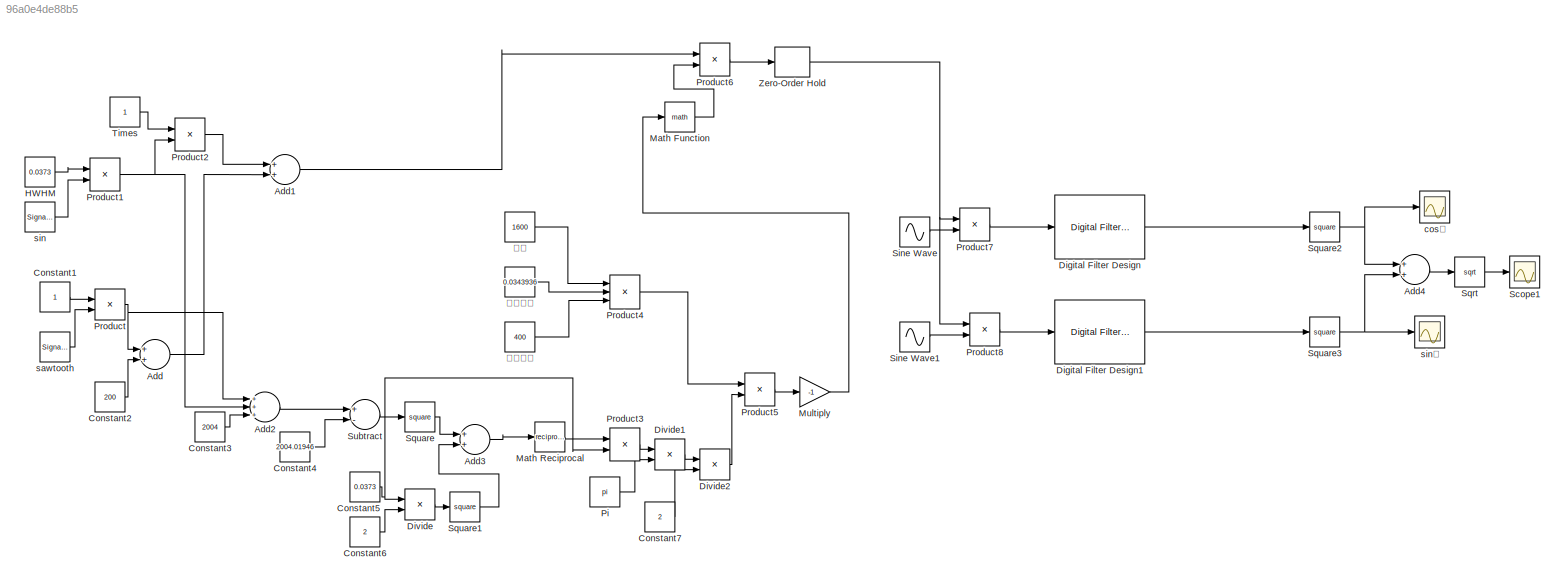
MODEL slx_96a0e4de88b5
KIND model
CONFIG AbsTol = auto
CONFIG EnableMultiTasking = off
CONFIG FixedStep = auto
CONFIG MaxStep = auto
CONFIG MinStep = auto
CONFIG RelTol = 1e-3
CONFIG SampleTimeConstraint = Unconstrained
CONFIG Solver = VariableStepAuto
CONFIG SolverName = VariableStepAuto
CONFIG StartTime = 0.0
CONFIG StopTime = 10.0
BLOCK [Sum] Add
  InputSameDT = off
  OutDataTypeStr = Inherit: Inherit via internal rule
  Ports = [2, 1]
  SaturateOnIntegerOverflow = off
BLOCK [Sum] Add1
  InputSameDT = off
  OutDataTypeStr = Inherit: Inherit via internal rule
  Ports = [2, 1]
  SaturateOnIntegerOverflow = off
BLOCK [Sum] Add2
  InputSameDT = off
  Inputs = +++
  OutDataTypeStr = Inherit: Inherit via internal rule
  Ports = [3, 1]
  SaturateOnIntegerOverflow = off
BLOCK [Sum] Add3
  InputSameDT = off
  OutDataTypeStr = Inherit: Inherit via internal rule
  Ports = [2, 1]
  SaturateOnIntegerOverflow = off
BLOCK [Sum] Add4
  InputSameDT = off
  OutDataTypeStr = Inherit: Inherit via internal rule
  Ports = [2, 1]
  SaturateOnIntegerOverflow = off
BLOCK [Constant] Constant1
BLOCK [Constant] Constant2
  Value = 200
BLOCK [Constant] Constant3
  Value = 2004
BLOCK [Constant] Constant4
  Value = 2004.01946
BLOCK [Constant] Constant5
  Value = 0.0373
BLOCK [Constant] Constant6
  Value = 2
BLOCK [Constant] Constant7
  Value = 2
BLOCK [Reference] Digital Filter Design  REF=dsparch4/Digital
Filter Design
  Ports = [1, 1]
  SourceBlock = dsparch4/Digital\nFilter Design
  SourceProductBaseCode = DS
  SourceProductName = DSP System Toolbox
  SourceType = Digital Filter Design
  UserDataPersistent = on
BLOCK [Reference] Digital Filter Design1  REF=dsparch4/Digital
Filter Design
  Ports = [1, 1]
  SourceBlock = dsparch4/Digital\nFilter Design
  SourceProductBaseCode = DS
  SourceProductName = DSP System Toolbox
  SourceType = Digital Filter Design
  UserDataPersistent = on
BLOCK [Product] Divide
  InputSameDT = off
  Inputs = */
  OutDataTypeStr = Inherit: Inherit via internal rule
  Ports = [2, 1]
  RndMeth = Floor
  SaturateOnIntegerOverflow = off
BLOCK [Product] Divide1
  InputSameDT = off
  Inputs = */
  OutDataTypeStr = Inherit: Inherit via internal rule
  Ports = [2, 1]
  RndMeth = Floor
  SaturateOnIntegerOverflow = off
BLOCK [Product] Divide2
  InputSameDT = off
  Inputs = */
  OutDataTypeStr = Inherit: Inherit via internal rule
  Ports = [2, 1]
  RndMeth = Floor
  SaturateOnIntegerOverflow = off
BLOCK [Constant] HWHM
  Value = 0.0373
BLOCK [Math] Math Function
  Ports = [1, 1]
BLOCK [Math] Math Reciprocal
  Operator = reciprocal
  Ports = [1, 1]
BLOCK [Gain] Multiply
  Gain = -1
  OutDataTypeStr = Inherit: Inherit via internal rule
  ParamDataTypeStr = Inherit: Inherit via internal rule
  SaturateOnIntegerOverflow = off
BLOCK [Constant] Pi
  OutDataTypeStr = Inherit: Inherit via back propagation
  Value = pi
BLOCK [Product] Product
  InputSameDT = off
  OutDataTypeStr = Inherit: Inherit via internal rule
  Ports = [2, 1]
  RndMeth = Floor
  SaturateOnIntegerOverflow = off
BLOCK [Product] Product1
  InputSameDT = off
  OutDataTypeStr = Inherit: Inherit via internal rule
  Ports = [2, 1]
  RndMeth = Floor
  SaturateOnIntegerOverflow = off
BLOCK [Product] Product2
  InputSameDT = off
  OutDataTypeStr = Inherit: Inherit via internal rule
  Ports = [2, 1]
  RndMeth = Floor
  SaturateOnIntegerOverflow = off
BLOCK [Product] Product3
  InputSameDT = off
  OutDataTypeStr = Inherit: Inherit via internal rule
  Ports = [2, 1]
  RndMeth = Floor
  SaturateOnIntegerOverflow = off
BLOCK [Product] Product4
  InputSameDT = off
  Inputs = 3
  OutDataTypeStr = Inherit: Inherit via internal rule
  Ports = [3, 1]
  RndMeth = Floor
  SaturateOnIntegerOverflow = off
BLOCK [Product] Product5
  InputSameDT = off
  OutDataTypeStr = Inherit: Inherit via internal rule
  Ports = [2, 1]
  RndMeth = Floor
  SaturateOnIntegerOverflow = off
BLOCK [Product] Product6
  InputSameDT = off
  OutDataTypeStr = Inherit: Inherit via internal rule
  Ports = [2, 1]
  RndMeth = Floor
  SaturateOnIntegerOverflow = off
BLOCK [Product] Product7
  InputSameDT = off
  OutDataTypeStr = Inherit: Inherit via internal rule
  Ports = [2, 1]
  RndMeth = Floor
  SaturateOnIntegerOverflow = off
BLOCK [Product] Product8
  InputSameDT = off
  OutDataTypeStr = Inherit: Inherit via internal rule
  Ports = [2, 1]
  RndMeth = Floor
  SaturateOnIntegerOverflow = off
BLOCK [Scope] Scope1
  Floating = off
  NumInputPorts = 1
  Ports = [1]
  ScopeSpecificationString = Simulink.scopes.TimeScopeBlockCfg('CurrentConfiguration', extmgr.ConfigurationSet(extmgr.Configuration('Core','General UI',true),extmgr.Configuration('Core','Source UI',true),extmgr.Configuration('Sources','WiredSimulink',true,'DataLoggingVariableName','ScopeData1'),extmgr.Configuration('Visuals','Time Domain',true,'SerializedDisplays',{struct('MinYLimReal','-0.000000000000000000000000000000000000...<+1842ch>
BLOCK [Sin] Sine Wave
  Frequency = 40000
  Phase = pi/2
  Ports = [0, 1]
  SampleTime = 0
BLOCK [Sin] Sine Wave1
  Frequency = 40000
  Ports = [0, 1]
  SampleTime = 0
BLOCK [Sqrt] Sqrt
BLOCK [Math] Square
  Operator = square
  Ports = [1, 1]
BLOCK [Math] Square1
  Operator = square
  Ports = [1, 1]
BLOCK [Math] Square2
  Operator = square
  Ports = [1, 1]
BLOCK [Math] Square3
  Operator = square
  Ports = [1, 1]
BLOCK [Sum] Subtract
  InputSameDT = off
  Inputs = +-
  OutDataTypeStr = Inherit: Inherit via internal rule
  Ports = [2, 1]
  SaturateOnIntegerOverflow = off
BLOCK [Constant] Times
BLOCK [ZeroOrderHold] Zero-Order Hold
  SampleTime = -1
BLOCK [Scope] cos侧
  Floating = off
  NumInputPorts = 1
  Ports = [1]
  ScopeSpecificationString = Simulink.scopes.TimeScopeBlockCfg('CurrentConfiguration', extmgr.ConfigurationSet(extmgr.Configuration('Core','General UI',true),extmgr.Configuration('Core','Source UI',true),extmgr.Configuration('Sources','WiredSimulink',true,'DataLoggingVariableName','ScopeData2'),extmgr.Configuration('Visuals','Time Domain',true,'SerializedDisplays',{struct('MinYLimReal','2002.7097','MaxYLimReal','2005.2903','Y...<+1480ch>
BLOCK [SignalGenerator] sawtooth
  Frequency = 2
  Ports = [0, 1]
  WaveForm = sawtooth
BLOCK [SignalGenerator] sin
  Frequency = 20000
  Ports = [0, 1]
BLOCK [Scope] sin侧
  Floating = off
  NumInputPorts = 1
  Ports = [1]
  ScopeSpecificationString = Simulink.scopes.TimeScopeBlockCfg('CurrentConfiguration', extmgr.ConfigurationSet(extmgr.Configuration('Core','General UI',true),extmgr.Configuration('Core','Source UI',true),extmgr.Configuration('Sources','WiredSimulink',true),extmgr.Configuration('Visuals','Time Domain',true,'SerializedDisplays',{struct('MinYLimReal','-0.000000000000000000000000000000000000000000000000000000000000000000000000000...<+2233ch>
BLOCK [Constant] 光程
  Value = 1600
BLOCK [Constant] 吸收截面
  Value = 0.0343936
BLOCK [Constant] 气体浓度
  Value = 400
LINE Add1:1 -> Product6:1
LINE Add2:1 -> Subtract:1
LINE Add3:1 -> Math Reciprocal:1
LINE Add4:1 -> Sqrt:1
LINE Add:1 -> Add1:2
LINE Constant1:1 -> Product:1
LINE Constant2:1 -> Add:2
LINE Constant3:1 -> Add2:3
LINE Constant4:1 -> Subtract:2
NET Constant5:1 -> Divide:1, Product3:2
LINE Constant6:1 -> Divide:2
LINE Constant7:1 -> Divide2:2
LINE Digital Filter Design1:1 -> Square3:1
LINE Digital Filter Design:1 -> Square2:1
LINE Divide1:1 -> Divide2:1
LINE Divide2:1 -> Product5:2
LINE Divide:1 -> Square1:1
LINE HWHM:1 -> Product1:1
LINE Math Function:1 -> Product6:2
LINE Math Reciprocal:1 -> Product3:1
LINE Multiply:1 -> Math Function:1
LINE Pi:1 -> Divide1:2
NET Product1:1 -> Add2:2, Product2:2
LINE Product2:1 -> Add1:1
LINE Product3:1 -> Divide1:1
LINE Product4:1 -> Product5:1
LINE Product5:1 -> Multiply:1
LINE Product6:1 -> Zero-Order Hold:1
LINE Product7:1 -> Digital Filter Design:1
LINE Product8:1 -> Digital Filter Design1:1
NET Product:1 -> Add2:1, Add:1
LINE Sine Wave1:1 -> Product8:2
LINE Sine Wave:1 -> Product7:2
LINE Sqrt:1 -> Scope1:1
LINE Square1:1 -> Add3:2
NET Square2:1 -> Add4:1, cos侧:1
NET Square3:1 -> Add4:2, sin侧:1
LINE Square:1 -> Add3:1
LINE Subtract:1 -> Square:1
LINE Times:1 -> Product2:1
NET Zero-Order Hold:1 -> Product7:1, Product8:1
LINE sawtooth:1 -> Product:2
LINE sin:1 -> Product1:2
LINE 光程:1 -> Product4:1
LINE 吸收截面:1 -> Product4:2
LINE 气体浓度:1 -> Product4:3
note: NET lines group one-source signal fan-out (src -> all destinations, sorted); 1:1 wires keep LINE
